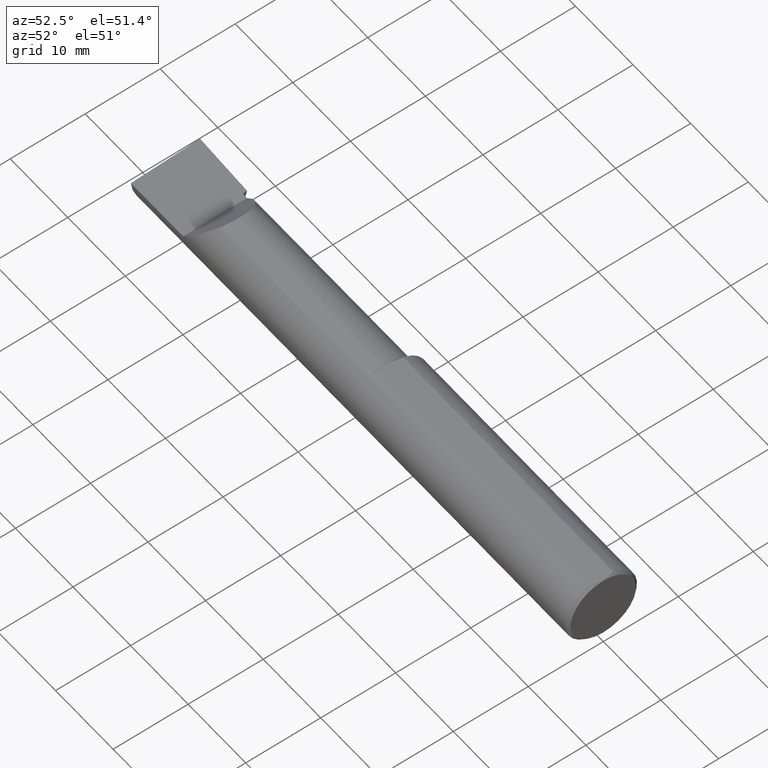
[diagram: clean part render]
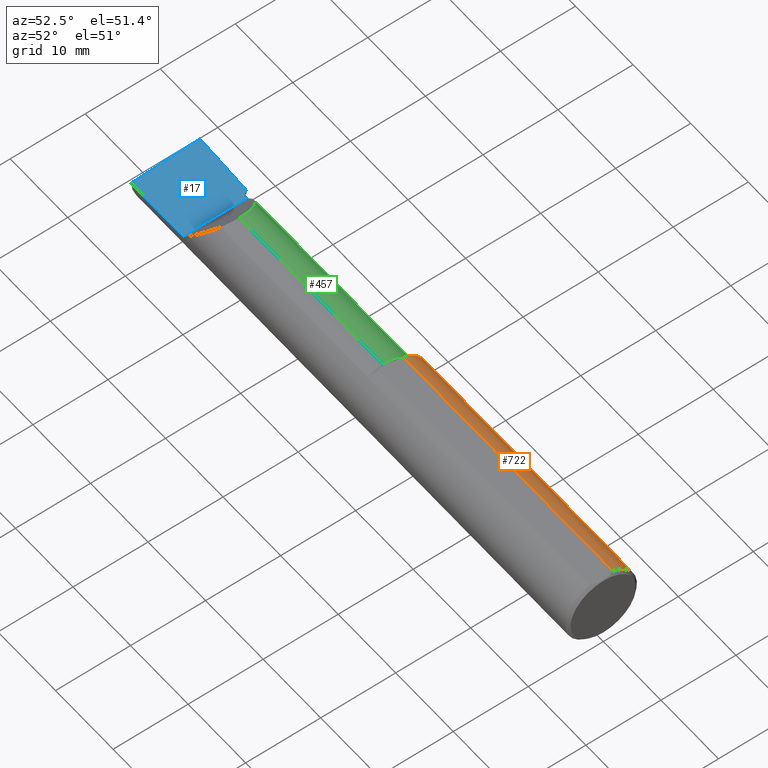
[diagram: same view with three faces highlighted in distinct colors, each labeled with its STEP entity id]
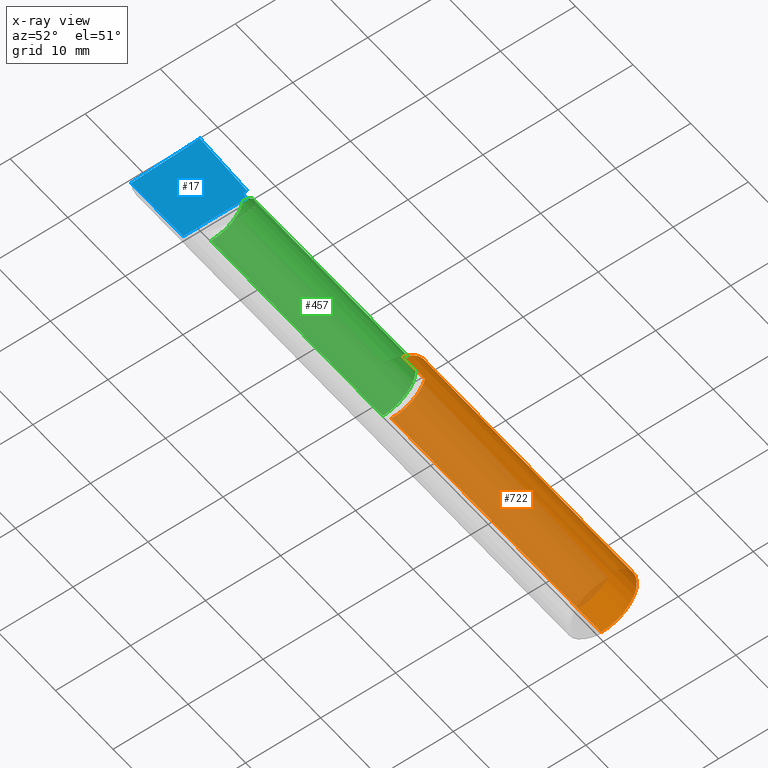
[diagram: x-ray of the same camera — body ghosted, the three highlighted faces saturated]
A machine part, auxiliary view with three faces highlighted in distinct colors.
The next image is the same camera in x-ray (body ghosted, the three faces saturated) — at least one of them is partly hidden behind the body in this view.
Their STEP definitions:

[orange] entity #722 — the highlighted cylindrical surface (partial cylindrical patch) has radius 4.7587 mm, axis along (1, -0, -0).
#9 = EDGE_CURVE ( 'NONE', #211, #100, #341, .T. ) ;
#13 = CARTESIAN_POINT ( 'NONE',  ( -1.451877184496278561, 5.346707327247464941E-17, -0.1873499999999999888 ) ) ;
#19 = CARTESIAN_POINT ( 'NONE',  ( -0.01500000000000298143, 0.000000000000000000, -0.1873499999999999888 ) ) ;
#43 = DIRECTION ( 'NONE',  ( 1.000000000000000000, -0.000000000000000000, -0.000000000000000000 ) ) ;
#65 = AXIS2_PLACEMENT_3D ( 'NONE', #234, #289, #504 ) ;
#100 = VERTEX_POINT ( 'NONE', #643 ) ;
#104 = CARTESIAN_POINT ( 'NONE',  ( -1.450000000000000178, 0.07088076923076941371, 0.1734241593701823791 ) ) ;
#110 = FACE_OUTER_BOUND ( 'NONE', #263, .T. ) ;
#117 = VERTEX_POINT ( 'NONE', #13 ) ;
#142 = EDGE_CURVE ( 'NONE', #841, #612, #223, .T. ) ;
#179 = CARTESIAN_POINT ( 'NONE',  ( -1.450131522081296032, 0.04788091684906111561, -0.1815294061537139347 ) ) ;
#187 = VECTOR ( 'NONE', #484, 39.37007874015748143 ) ;
#211 = VERTEX_POINT ( 'NONE', #364 ) ;
#223 = CIRCLE ( 'NONE', #65, 0.1873499999999999888 ) ;
#226 = VERTEX_POINT ( 'NONE', #19 ) ;
#234 = CARTESIAN_POINT ( 'NONE',  ( -1.450000000000000178, 0.000000000000000000, 0.000000000000000000 ) ) ;
#263 = EDGE_LOOP ( 'NONE', ( #725, #555, #593, #813, #535, #290 ) ) ;
#288 = AXIS2_PLACEMENT_3D ( 'NONE', #407, #610, #833 ) ;
#289 = DIRECTION ( 'NONE',  ( 1.000000000000000000, -0.000000000000000000, -0.000000000000000000 ) ) ;
#290 = ORIENTED_EDGE ( 'NONE', *, *, #469, .T. ) ;
#316 = CARTESIAN_POINT ( 'NONE',  ( -1.450727058424665650, 0.02420815208666589682, -0.1861705478032860683 ) ) ;
#325 = CARTESIAN_POINT ( 'NONE',  ( -1.450000000000000178, 0.07088076923076941371, 0.1734241593701823791 ) ) ;
#341 = LINE ( 'NONE', #344, #187 ) ;
#344 = CARTESIAN_POINT ( 'NONE',  ( -3.000000000000000444, 0.06250000000000000000, 0.1766175883087524878 ) ) ;
#345 = CARTESIAN_POINT ( 'NONE',  ( -1.450000000000000178, 0.07088076923076941371, -0.1734241593701823791 ) ) ;
#364 = CARTESIAN_POINT ( 'NONE',  ( -1.450024209494725991, 0.06250000000000000000, 0.1766175883096191834 ) ) ;
#383 = CARTESIAN_POINT ( 'NONE',  ( -1.450007834297411424, 0.06532511989592133805, 0.1756178577882265834 ) ) ;
#407 = CARTESIAN_POINT ( 'NONE',  ( -0.01500000000000298143, 0.000000000000000000, 0.000000000000000000 ) ) ;
#426 = EDGE_CURVE ( 'NONE', #117, #226, #619, .T. ) ;
#450 = CARTESIAN_POINT ( 'NONE',  ( -1.451877184496278561, 5.346707327247464941E-17, -0.1873499999999999888 ) ) ;
#465 = CARTESIAN_POINT ( 'NONE',  ( -1.450000000000000178, 0.05966357177829918063, -0.1780087777240033642 ) ) ;
#469 = EDGE_CURVE ( 'NONE', #100, #226, #538, .T. ) ;
#470 = CARTESIAN_POINT ( 'NONE',  ( -1.451188158248102100, 0.01219467320173876594, -0.1873499999999999888 ) ) ;
#480 = DIRECTION ( 'NONE',  ( 1.000000000000000000, -0.000000000000000000, -0.000000000000000000 ) ) ;
#484 = DIRECTION ( 'NONE',  ( 1.000000000000000000, -0.000000000000000000, -0.000000000000000000 ) ) ;
#504 = DIRECTION ( 'NONE',  ( 0.000000000000000000, 8.881784197001252323E-16, 1.000000000000000000 ) ) ;
#524 = CARTESIAN_POINT ( 'NONE',  ( -3.000000000000000444, 0.000000000000000000, 0.000000000000000000 ) ) ;
#532 = DIRECTION ( 'NONE',  ( 0.000000000000000000, 0.000000000000000000, -1.000000000000000000 ) ) ;
#535 = ORIENTED_EDGE ( 'NONE', *, *, #9, .T. ) ;
#538 = CIRCLE ( 'NONE', #288, 0.1873499999999999888 ) ;
#555 = ORIENTED_EDGE ( 'NONE', *, *, #670, .T. ) ;
#563 = VECTOR ( 'NONE', #480, 39.37007874015748143 ) ;
#593 = ORIENTED_EDGE ( 'NONE', *, *, #142, .T. ) ;
#595 = CARTESIAN_POINT ( 'NONE',  ( -1.450000000000000178, 0.06811857382864851262, 0.1745531055076700588 ) ) ;
#610 = DIRECTION ( 'NONE',  ( -1.000000000000000000, 0.000000000000000000, 0.000000000000000000 ) ) ;
#612 = VERTEX_POINT ( 'NONE', #325 ) ;
#619 = LINE ( 'NONE', #826, #563 ) ;
#643 = CARTESIAN_POINT ( 'NONE',  ( -0.01500000000000269174, 0.06250000000000000000, 0.1766175883087527931 ) ) ;
#670 = EDGE_CURVE ( 'NONE', #117, #841, #680, .T. ) ;
#680 = B_SPLINE_CURVE_WITH_KNOTS ( 'NONE', 3,
 ( #450, #470, #316, #179, #465, #728 ),
 .UNSPECIFIED., .F., .F.,
 ( 4, 2, 4 ),
 ( 0.003095677237903201717, 0.004037368466372809675, 0.004979059694842417200 ),
 .UNSPECIFIED. ) ;
#684 = EDGE_CURVE ( 'NONE', #612, #211, #754, .T. ) ;
#722 = ADVANCED_FACE ( 'NONE', ( #110 ), #745, .T. ) ;
#725 = ORIENTED_EDGE ( 'NONE', *, *, #426, .F. ) ;
#728 = CARTESIAN_POINT ( 'NONE',  ( -1.450000000000000178, 0.07088076923076941371, -0.1734241593701823791 ) ) ;
#736 = CARTESIAN_POINT ( 'NONE',  ( -1.450024209494725991, 0.06250000000000000000, 0.1766175883096191834 ) ) ;
#745 = CYLINDRICAL_SURFACE ( 'NONE', #748, 0.1873499999999999888 ) ;
#748 = AXIS2_PLACEMENT_3D ( 'NONE', #524, #43, #532 ) ;
#754 = B_SPLINE_CURVE_WITH_KNOTS ( 'NONE', 3,
 ( #104, #595, #383, #736 ),
 .UNSPECIFIED., .F., .F.,
 ( 4, 4 ),
 ( 0.003725802019050298945, 0.003952076042220212249 ),
 .UNSPECIFIED. ) ;
#813 = ORIENTED_EDGE ( 'NONE', *, *, #684, .T. ) ;
#826 = CARTESIAN_POINT ( 'NONE',  ( -3.000000000000000444, 0.000000000000000000, -0.1873499999999999888 ) ) ;
#833 = DIRECTION ( 'NONE',  ( 0.000000000000000000, 0.000000000000000000, 1.000000000000000000 ) ) ;
#841 = VERTEX_POINT ( 'NONE', #345 ) ;

[blue] entity #17 — the highlighted planar face has unit normal (0, 0, 1).
#2 = DIRECTION ( 'NONE',  ( -0.000000000000000000, -0.000000000000000000, -1.000000000000000000 ) ) ;
#17 = ADVANCED_FACE ( 'NONE', ( #413 ), #420, .T. ) ;
#34 = ORIENTED_EDGE ( 'NONE', *, *, #651, .T. ) ;
#47 = CARTESIAN_POINT ( 'NONE',  ( -2.999406346865630013, 0.1684827509442838045, 3.826894855694929702E-18 ) ) ;
#113 = VERTEX_POINT ( 'NONE', #704 ) ;
#125 = VERTEX_POINT ( 'NONE', #150 ) ;
#150 = CARTESIAN_POINT ( 'NONE',  ( -2.630000000000001670, -0.1873499999999999888, 3.826894855694929702E-18 ) ) ;
#151 = ORIENTED_EDGE ( 'NONE', *, *, #844, .T. ) ;
#163 = VERTEX_POINT ( 'NONE', #565 ) ;
#221 = CARTESIAN_POINT ( 'NONE',  ( -2.660000000000000586, 0.1873499999999999888, 3.826894855694929702E-18 ) ) ;
#233 = EDGE_CURVE ( 'NONE', #125, #463, #723, .T. ) ;
#238 = CARTESIAN_POINT ( 'NONE',  ( -2.630000000000001670, 0.1873499999999999888, 3.826894855694929702E-18 ) ) ;
#239 = CARTESIAN_POINT ( 'NONE',  ( -2.999999224601709091, 0.1855899827131189117, 3.826894855694929702E-18 ) ) ;
#243 = CARTESIAN_POINT ( 'NONE',  ( -2.773332866622927551, 0.1763362796973901025, 3.826894855694929702E-18 ) ) ;
#253 = DIRECTION ( 'NONE',  ( 0.000000000000000000, 1.000000000000000000, 0.000000000000000000 ) ) ;
#254 = CIRCLE ( 'NONE', #602, 0.009999999999999620304 ) ;
#262 = B_SPLINE_CURVE_WITH_KNOTS ( 'NONE', 3,
 ( #529, #243, #525, #746 ),
 .UNSPECIFIED., .F., .F.,
 ( 4, 4 ),
 ( 0.01328888276127578559, 0.02193206484020570474 ),
 .UNSPECIFIED. ) ;
#267 = EDGE_CURVE ( 'NONE', #385, #305, #262, .T. ) ;
#303 = EDGE_CURVE ( 'NONE', #305, #463, #456, .T. ) ;
#305 = VERTEX_POINT ( 'NONE', #239 ) ;
#324 = ORIENTED_EDGE ( 'NONE', *, *, #303, .T. ) ;
#330 = CARTESIAN_POINT ( 'NONE',  ( -2.630000000000001670, 0.1476500000000000867, 3.826894855694929702E-18 ) ) ;
#355 = LINE ( 'NONE', #221, #850 ) ;
#374 = VERTEX_POINT ( 'NONE', #330 ) ;
#385 = VERTEX_POINT ( 'NONE', #608 ) ;
#413 = FACE_OUTER_BOUND ( 'NONE', #716, .T. ) ;
#416 = CARTESIAN_POINT ( 'NONE',  ( -2.455000000000000071, 0.1873499999999999888, 3.826894855694929702E-18 ) ) ;
#420 = PLANE ( 'NONE',  #544 ) ;
#422 = DIRECTION ( 'NONE',  ( 0.000000000000000000, 1.000000000000000000, 0.000000000000000000 ) ) ;
#428 = VECTOR ( 'NONE', #562, 39.37007874015748143 ) ;
#443 = CARTESIAN_POINT ( 'NONE',  ( -2.455000000000000071, -0.1873499999999999888, 3.826894855694929702E-18 ) ) ;
#456 = LINE ( 'NONE', #47, #740 ) ;
#463 = VERTEX_POINT ( 'NONE', #483 ) ;
#466 = DIRECTION ( 'NONE',  ( 0.03463576215158789551, -0.9994000019912839816, 0.000000000000000000 ) ) ;
#479 = CARTESIAN_POINT ( 'NONE',  ( 0.000000000000000000, 0.1476500000000000867, 3.826894855694929702E-18 ) ) ;
#483 = CARTESIAN_POINT ( 'NONE',  ( -2.987074409200135783, -0.1873499999999999888, 3.826894855694929702E-18 ) ) ;
#525 = CARTESIAN_POINT ( 'NONE',  ( -2.886665954670303069, 0.1809653614455468129, 3.826894855694929702E-18 ) ) ;
#529 = CARTESIAN_POINT ( 'NONE',  ( -2.660000000000000586, 0.1717017853082105638, 0.000000000000000000 ) ) ;
#534 = VECTOR ( 'NONE', #788, 39.37007874015748143 ) ;
#544 = AXIS2_PLACEMENT_3D ( 'NONE', #416, #615, #762 ) ;
#551 = DIRECTION ( 'NONE',  ( 1.000000000000000000, 0.000000000000000000, 0.000000000000000000 ) ) ;
#553 = ORIENTED_EDGE ( 'NONE', *, *, #776, .T. ) ;
#562 = DIRECTION ( 'NONE',  ( -1.000000000000000000, 0.000000000000000000, 0.000000000000000000 ) ) ;
#565 = CARTESIAN_POINT ( 'NONE',  ( -2.660000000000000142, 0.1576500000000001234, 0.000000000000000000 ) ) ;
#588 = VECTOR ( 'NONE', #253, 39.37007874015748143 ) ;
#602 = AXIS2_PLACEMENT_3D ( 'NONE', #622, #2, #551 ) ;
#608 = CARTESIAN_POINT ( 'NONE',  ( -2.660000000000000586, 0.1717017853082105638, 0.000000000000000000 ) ) ;
#615 = DIRECTION ( 'NONE',  ( 0.000000000000000000, 0.000000000000000000, 1.000000000000000000 ) ) ;
#622 = CARTESIAN_POINT ( 'NONE',  ( -2.650000000000000355, 0.1576500000000001234, 0.000000000000000000 ) ) ;
#631 = LINE ( 'NONE', #479, #428 ) ;
#651 = EDGE_CURVE ( 'NONE', #125, #374, #875, .T. ) ;
#661 = ORIENTED_EDGE ( 'NONE', *, *, #820, .T. ) ;
#691 = ORIENTED_EDGE ( 'NONE', *, *, #267, .T. ) ;
#704 = CARTESIAN_POINT ( 'NONE',  ( -2.650000000000000355, 0.1476500000000001422, 3.826894855694930473E-18 ) ) ;
#716 = EDGE_LOOP ( 'NONE', ( #691, #324, #874, #34, #553, #151, #661 ) ) ;
#723 = LINE ( 'NONE', #443, #534 ) ;
#740 = VECTOR ( 'NONE', #466, 39.37007874015748854 ) ;
#746 = CARTESIAN_POINT ( 'NONE',  ( -2.999999224601709091, 0.1855899827131189117, 3.826894855694929702E-18 ) ) ;
#762 = DIRECTION ( 'NONE',  ( 1.000000000000000000, 0.000000000000000000, -0.000000000000000000 ) ) ;
#776 = EDGE_CURVE ( 'NONE', #374, #113, #631, .T. ) ;
#788 = DIRECTION ( 'NONE',  ( -1.000000000000000000, -0.000000000000000000, -0.000000000000000000 ) ) ;
#820 = EDGE_CURVE ( 'NONE', #163, #385, #355, .T. ) ;
#844 = EDGE_CURVE ( 'NONE', #113, #163, #254, .T. ) ;
#850 = VECTOR ( 'NONE', #422, 39.37007874015748143 ) ;
#874 = ORIENTED_EDGE ( 'NONE', *, *, #233, .F. ) ;
#875 = LINE ( 'NONE', #238, #588 ) ;

[green] entity #457 — the highlighted cylindrical surface (partial cylindrical patch) has radius 4.4107 mm, axis along (1, -0, -0).
#44 = LINE ( 'NONE', #876, #302 ) ;
#45 = VERTEX_POINT ( 'NONE', #895 ) ;
#54 = DIRECTION ( 'NONE',  ( 1.000000000000000000, -5.691349986800549142E-18, -0.000000000000000000 ) ) ;
#55 = ORIENTED_EDGE ( 'NONE', *, *, #776, .F. ) ;
#60 = FACE_OUTER_BOUND ( 'NONE', #837, .T. ) ;
#95 = VERTEX_POINT ( 'NONE', #229 ) ;
#99 = CIRCLE ( 'NONE', #815, 0.1736500000000000821 ) ;
#105 = DIRECTION ( 'NONE',  ( 1.000000000000000000, -0.000000000000000000, -0.000000000000000000 ) ) ;
#113 = VERTEX_POINT ( 'NONE', #704 ) ;
#124 = CIRCLE ( 'NONE', #628, 0.1736500000000001376 ) ;
#126 =( BOUNDED_CURVE ( )  B_SPLINE_CURVE ( 3, ( #148, #835, #557, #217 ),
 .UNSPECIFIED., .F., .F. ) 
 B_SPLINE_CURVE_WITH_KNOTS ( ( 4, 4 ),
 ( 4.712388980384689674, 6.283185307179586232 ),
 .UNSPECIFIED. ) 
 CURVE ( )  GEOMETRIC_REPRESENTATION_ITEM ( )  RATIONAL_B_SPLINE_CURVE ( ( 1.000000000000000000, 0.8047378541243649375, 0.8047378541243649375, 1.000000000000000000 ) ) 
 REPRESENTATION_ITEM ( '' )  );
#148 = CARTESIAN_POINT ( 'NONE',  ( -2.630000000000001670, 0.1476500000000000867, 3.826894855694929702E-18 ) ) ;
#180 = CARTESIAN_POINT ( 'NONE',  ( -2.649999999999999467, -0.02600000000000000921, 0.000000000000000000 ) ) ;
#185 = ORIENTED_EDGE ( 'NONE', *, *, #720, .F. ) ;
#190 = ORIENTED_EDGE ( 'NONE', *, *, #881, .T. ) ;
#191 = CARTESIAN_POINT ( 'NONE',  ( -2.650000000000000355, -0.02600000000000000921, 0.000000000000000000 ) ) ;
#217 = CARTESIAN_POINT ( 'NONE',  ( -2.456350000000000033, -0.02600000000000000921, 0.1736500000000001098 ) ) ;
#229 = CARTESIAN_POINT ( 'NONE',  ( -2.649999999999999467, 0.08394431857627707161, -0.1344119388774603907 ) ) ;
#252 = EDGE_CURVE ( 'NONE', #45, #256, #44, .T. ) ;
#256 = VERTEX_POINT ( 'NONE', #401 ) ;
#258 = DIRECTION ( 'NONE',  ( -1.000000000000000000, 0.000000000000000000, 0.000000000000000000 ) ) ;
#270 = ORIENTED_EDGE ( 'NONE', *, *, #333, .T. ) ;
#302 = VECTOR ( 'NONE', #105, 39.37007874015748143 ) ;
#314 = VERTEX_POINT ( 'NONE', #660 ) ;
#330 = CARTESIAN_POINT ( 'NONE',  ( -2.630000000000001670, 0.1476500000000000867, 3.826894855694929702E-18 ) ) ;
#333 = EDGE_CURVE ( 'NONE', #743, #256, #99, .T. ) ;
#361 = EDGE_CURVE ( 'NONE', #45, #95, #578, .T. ) ;
#374 = VERTEX_POINT ( 'NONE', #330 ) ;
#382 = DIRECTION ( 'NONE',  ( 1.000000000000000000, -0.000000000000000000, -0.000000000000000000 ) ) ;
#391 = CARTESIAN_POINT ( 'NONE',  ( -1.474999999999999867, -0.02600000000000000921, 0.1736500000000000821 ) ) ;
#401 = CARTESIAN_POINT ( 'NONE',  ( -1.474999999999999867, -0.02600000000000003003, -0.1736500000000000821 ) ) ;
#402 = ORIENTED_EDGE ( 'NONE', *, *, #252, .F. ) ;
#428 = VECTOR ( 'NONE', #562, 39.37007874015748143 ) ;
#445 = CARTESIAN_POINT ( 'NONE',  ( 0.000000000000000000, -0.02600000000000000921, 0.1736500000000001098 ) ) ;
#452 = AXIS2_PLACEMENT_3D ( 'NONE', #836, #892, #545 ) ;
#455 = DIRECTION ( 'NONE',  ( -1.000000000000000000, 0.000000000000000000, 0.000000000000000000 ) ) ;
#457 = ADVANCED_FACE ( 'NONE', ( #60 ), #542, .T. ) ;
#467 = AXIS2_PLACEMENT_3D ( 'NONE', #180, #54, #604 ) ;
#479 = CARTESIAN_POINT ( 'NONE',  ( 0.000000000000000000, 0.1476500000000000867, 3.826894855694929702E-18 ) ) ;
#542 = CYLINDRICAL_SURFACE ( 'NONE', #452, 0.1736500000000001098 ) ;
#545 = DIRECTION ( 'NONE',  ( 0.000000000000000000, 0.000000000000000000, 1.000000000000000000 ) ) ;
#547 = ORIENTED_EDGE ( 'NONE', *, *, #749, .T. ) ;
#557 = CARTESIAN_POINT ( 'NONE',  ( -2.456349999999999589, 0.07572181489391210940, 0.1736500000000001098 ) ) ;
#560 = ORIENTED_EDGE ( 'NONE', *, *, #361, .T. ) ;
#562 = DIRECTION ( 'NONE',  ( -1.000000000000000000, 0.000000000000000000, 0.000000000000000000 ) ) ;
#578 = CIRCLE ( 'NONE', #467, 0.1736500000000001098 ) ;
#604 = DIRECTION ( 'NONE',  ( 0.000000000000000000, -1.000000000000000000, 0.000000000000000000 ) ) ;
#628 = AXIS2_PLACEMENT_3D ( 'NONE', #191, #455, #733 ) ;
#631 = LINE ( 'NONE', #479, #428 ) ;
#649 = LINE ( 'NONE', #445, #690 ) ;
#660 = CARTESIAN_POINT ( 'NONE',  ( -2.456350000000000033, -0.02600000000000000921, 0.1736500000000001098 ) ) ;
#666 = CARTESIAN_POINT ( 'NONE',  ( -1.474999999999999867, -0.02600000000000000921, 0.000000000000000000 ) ) ;
#690 = VECTOR ( 'NONE', #382, 39.37007874015748143 ) ;
#704 = CARTESIAN_POINT ( 'NONE',  ( -2.650000000000000355, 0.1476500000000001422, 3.826894855694930473E-18 ) ) ;
#720 = EDGE_CURVE ( 'NONE', #113, #95, #124, .T. ) ;
#730 = DIRECTION ( 'NONE',  ( 0.000000000000000000, 0.000000000000000000, 1.000000000000000000 ) ) ;
#733 = DIRECTION ( 'NONE',  ( 0.000000000000000000, 0.000000000000000000, 1.000000000000000000 ) ) ;
#743 = VERTEX_POINT ( 'NONE', #391 ) ;
#749 = EDGE_CURVE ( 'NONE', #374, #314, #126, .T. ) ;
#776 = EDGE_CURVE ( 'NONE', #374, #113, #631, .T. ) ;
#815 = AXIS2_PLACEMENT_3D ( 'NONE', #666, #258, #730 ) ;
#835 = CARTESIAN_POINT ( 'NONE',  ( -2.528278185106088483, 0.1476500000000001145, 0.1017218148939120770 ) ) ;
#836 = CARTESIAN_POINT ( 'NONE',  ( 0.000000000000000000, -0.02600000000000000921, 0.000000000000000000 ) ) ;
#837 = EDGE_LOOP ( 'NONE', ( #402, #560, #185, #55, #547, #190, #270 ) ) ;
#876 = CARTESIAN_POINT ( 'NONE',  ( 0.000000000000000000, -0.02600000000000003003, -0.1736500000000001098 ) ) ;
#881 = EDGE_CURVE ( 'NONE', #314, #743, #649, .T. ) ;
#892 = DIRECTION ( 'NONE',  ( 1.000000000000000000, -0.000000000000000000, -0.000000000000000000 ) ) ;
#895 = CARTESIAN_POINT ( 'NONE',  ( -2.649999999999999467, -0.02600000000000003003, -0.1736500000000001098 ) ) ;